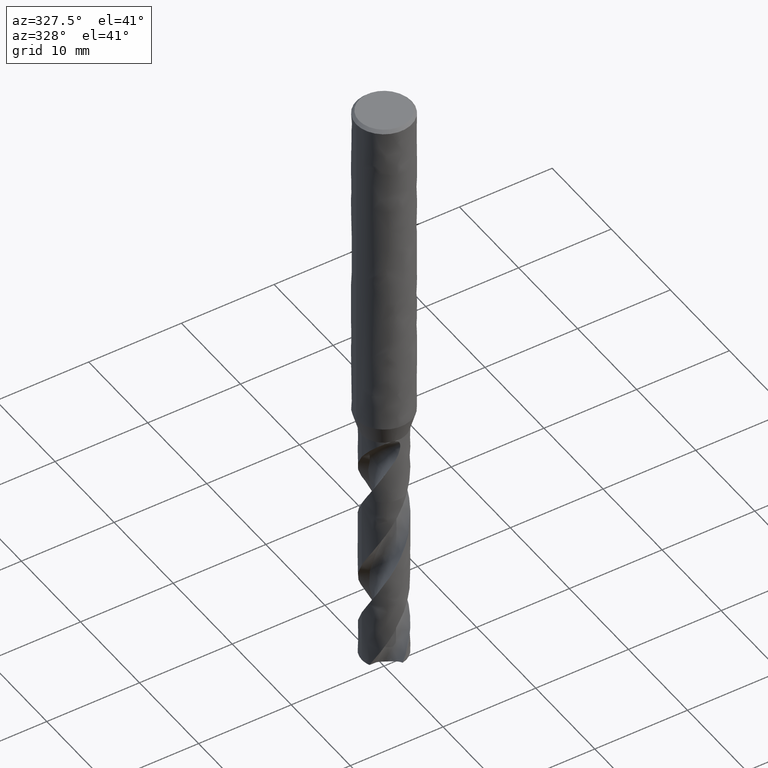
[diagram: clean part render]
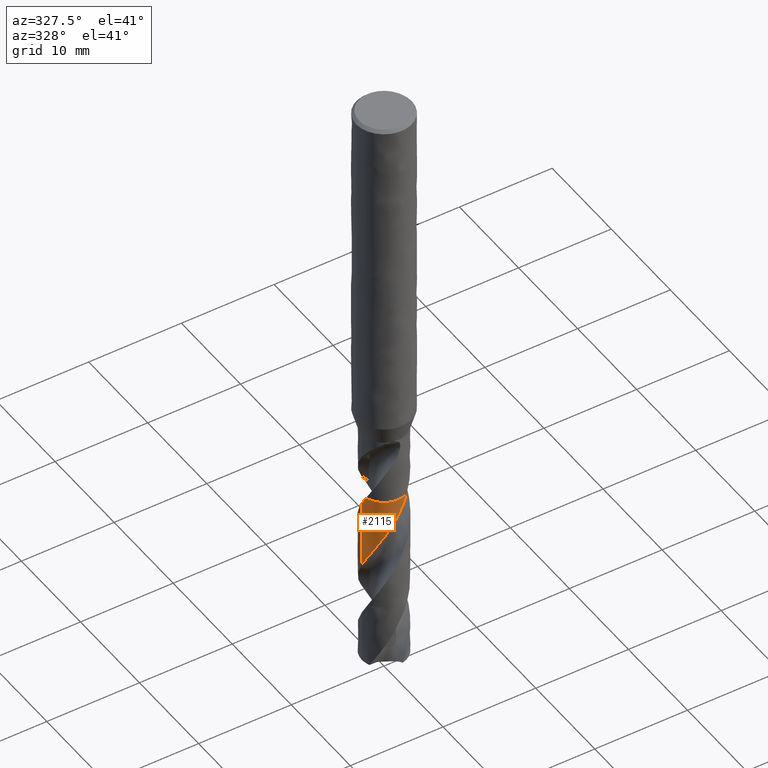
[diagram: same view with one face highlighted and labeled with its STEP entity id]
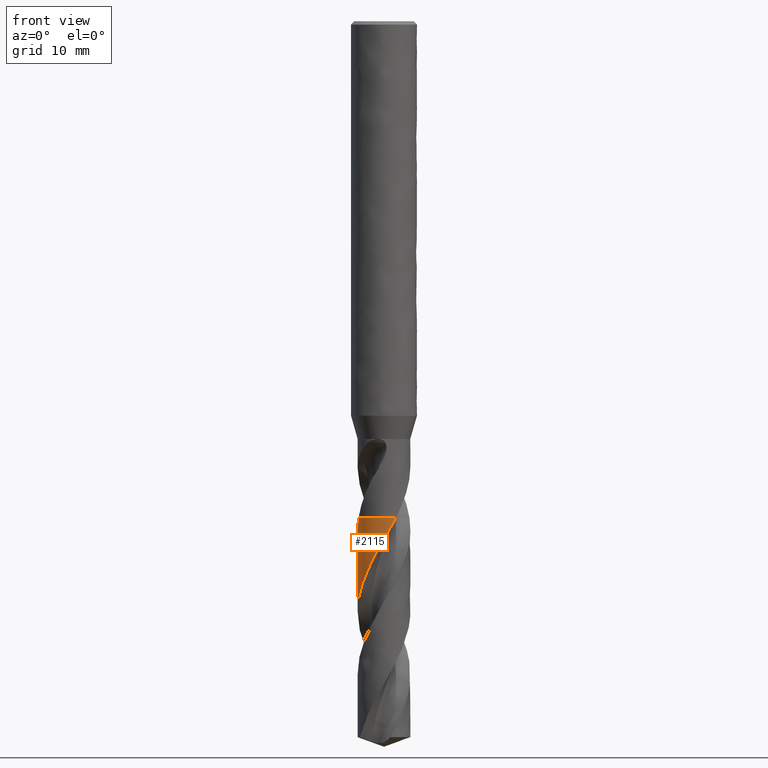
[diagram: same view with one face highlighted and labeled with its STEP entity id]
A machine part, auxiliary view. The second image highlights one B-rep face of the part: STEP entity #2115.
A second angle (front view) of the same face is appended — the face is thin or edge-on in the first view.
In plain terms, the highlighted face is a freeform B-spline surface patch.
Its self-contained STEP definition (entity closure, byte-faithful):
#1694 = EDGE_CURVE('', #1695, #1697, #1699, .T.);
#1695 = VERTEX_POINT('', #1696);
#1696 = CARTESIAN_POINT('', (1.05004083517096, -2.15810431732886, -45.2));
#1697 = VERTEX_POINT('', #1698);
#1698 = CARTESIAN_POINT('', (-2.32390896804312, -0.599539079834466, -45.2));
#1699 = CIRCLE('', #1700, 2.4);
#1700 = AXIS2_PLACEMENT_3D('', #1701, #1702, #1703);
#1701 = CARTESIAN_POINT('', (1.6947285544079E-31, 2.76770176607302E-15, -45.2));
#1702 = DIRECTION('', (3.74939945665464E-33, 6.12323399573677E-17, -1.));
#1703 = DIRECTION('', (-1., 6.12323399573677E-17, 0.));
#1755 = EDGE_CURVE('', #1695, #1756, #1758, .T.);
#1756 = VERTEX_POINT('', #1757);
#1757 = CARTESIAN_POINT('', (-2.4, 3.43370057689298E-15, -53.6765859884442));
#1758 = B_SPLINE_CURVE_WITH_KNOTS('', 3, (#1759, #1760, #1761, #1762, #1763, #1764, #1765, #1766, #1767, #1768, #1769, #1770, #1771, #1772, #1773, #1774, #1775, #1776, #1777, #1778, #1779, #1780, #1781, #1782, #1783, #1784, #1785, #1786, #1787, #1788, #1789, #1790, #1791, #1792, #1793, #1794, #1795, #1796, #1797, #1798, #1799, #1800, #1801, #1802, #1803, #1804, #1805, #1806, #1807, #1808, #1809, #1810, #1811, #1812, #1813, #1814, #1815, #1816, #1817, #1818, #1819, #1820, #1821, #1822, #1823, #1824, #1825, #1826, #1827, #1828, #1829, #1830, #1831, #1832, #1833, #1834), .UNSPECIFIED., .F., .U., (4, 3, 3, 3, 3, 3, 3, 3, 3, 3, 3, 3, 3, 3, 3, 3, 3, 3, 3, 3, 3, 3, 3, 3, 3, 4), (6.8524637557903, 7.08529733531364, 7.52810913284047, 7.97080244437384, 8.41337547245447, 8.85582609828276, 8.98710582537577, 9.02602174702702, 9.06494668401263, 9.50928878898632, 9.95349326748159, 10.3975653644562, 10.8415094806394, 11.2853292362742, 11.7290277018486, 12.1726073893658, 12.6160702371706, 13.0594176359914, 13.502650445902, 13.9457690040015, 14.3887731263511, 14.8316621772988, 15.2744351111606, 15.7170903627224, 16.1596258110125, 16.6209858195814), .UNSPECIFIED.);
#1759 = CARTESIAN_POINT('', (1.05004083517096, -2.15810431732886, -45.2));
#1760 = CARTESIAN_POINT('', (1.01528808339547, -2.17501351314753, -45.2673039571404));
#1761 = CARTESIAN_POINT('', (0.98012068126644, -2.19108572773686, -45.3346280882206));
#1762 = CARTESIAN_POINT('', (0.944597357300617, -2.20629459333532, -45.4019354516186));
#1763 = CARTESIAN_POINT('', (0.877037742524962, -2.23521939502323, -45.529943166975));
#1764 = CARTESIAN_POINT('', (0.80813566420696, -2.26104324072443, -45.6579874803337));
#1765 = CARTESIAN_POINT('', (0.738214944778243, -2.28364592161439, -45.7859997168709));
#1766 = CARTESIAN_POINT('', (0.668312934484987, -2.30624255456003, -45.9139777003528));
#1767 = CARTESIAN_POINT('', (0.597358693914168, -2.32563063157539, -46.0419918355357));
#1768 = CARTESIAN_POINT('', (0.525690055349426, -2.34171944641256, -46.1699762853841));
#1769 = CARTESIAN_POINT('', (0.454040889749544, -2.35780388978499, -46.2979259607936));
#1770 = CARTESIAN_POINT('', (0.381640158227367, -2.3705993963899, -46.4259125192476));
#1771 = CARTESIAN_POINT('', (0.308829115607433, -2.38004717964859, -46.5538684614748));
#1772 = CARTESIAN_POINT('', (0.236038210309583, -2.38949234993749, -46.6817890149763));
#1773 = CARTESIAN_POINT('', (0.162800020605798, -2.39559643907491, -46.8097459722624));
#1774 = CARTESIAN_POINT('', (0.0894606596980297, -2.39833208508884, -46.9376727072575));
#1775 = CARTESIAN_POINT('', (0.0677001044561358, -2.39914377986599, -46.9756299071747));
#1776 = CARTESIAN_POINT('', (0.0459284701002825, -2.39965929139235, -47.0135882458769));
#1777 = CARTESIAN_POINT('', (0.0241548368769771, -2.39987844355822, -47.0515459922139));
#1778 = CARTESIAN_POINT('', (0.0177003673001096, -2.3999434079568, -47.0627980013034));
#1779 = CARTESIAN_POINT('', (0.0112456652208933, -2.39998233291569, -47.0740500574941));
#1780 = CARTESIAN_POINT('', (0.00479096711243198, -2.39999521804401, -47.08530211565));
#1781 = CARTESIAN_POINT('', (-0.00166522630332761, -2.40000810615733, -47.0965567804784));
#1782 = CARTESIAN_POINT('', (-0.00812144176729348, -2.39999494242596, -47.1078114926414));
#1783 = CARTESIAN_POINT('', (-0.0145774427602609, -2.39995572837554, -47.1190662069142));
#1784 = CARTESIAN_POINT('', (-0.088275007691129, -2.39950808593712, -47.2475428036192));
#1785 = CARTESIAN_POINT('', (-0.161965522614885, -2.39566214145715, -47.3760563609709));
#1786 = CARTESIAN_POINT('', (-0.235298556088061, -2.38843768800943, -47.5045392035429));
#1787 = CARTESIAN_POINT('', (-0.308608876055054, -2.38121547219815, -47.632982251009));
#1788 = CARTESIAN_POINT('', (-0.381599788924693, -2.3706131180701, -47.7614622289592));
#1789 = CARTESIAN_POINT('', (-0.453924695734642, -2.35668249253111, -47.8899115395229));
#1790 = CARTESIAN_POINT('', (-0.526228048324384, -2.34275601858779, -48.0183225697091));
#1791 = CARTESIAN_POINT('', (-0.597903105664996, -2.32549607271961, -48.1467704644553));
#1792 = CARTESIAN_POINT('', (-0.668609881657909, -2.30498607938303, -48.2751877769476));
#1793 = CARTESIAN_POINT('', (-0.739296280083286, -2.28448199699019, -48.4035680797979));
#1794 = CARTESIAN_POINT('', (-0.809051629699298, -2.26071909533104, -48.5319850927394));
#1795 = CARTESIAN_POINT('', (-0.877545117377351, -2.23381166774803, -48.6603716923659));
#1796 = CARTESIAN_POINT('', (-0.946019418208723, -2.20691177765077, -48.7887223274928));
#1797 = CARTESIAN_POINT('', (-1.01326843754033, -2.1768550248338, -48.917109508645));
#1798 = CARTESIAN_POINT('', (-1.07897335223076, -2.14378555484823, -49.045466408886));
#1799 = CARTESIAN_POINT('', (-1.14466031063833, -2.11072512231076, -49.1737882308863));
#1800 = CARTESIAN_POINT('', (-1.20883854229777, -2.07463624500639, -49.3021465396352));
#1801 = CARTESIAN_POINT('', (-1.27120421147993, -2.03569149251936, -49.4304745890519));
#1802 = CARTESIAN_POINT('', (-1.33355318537555, -1.99675716554063, -49.5587682850561));
#1803 = CARTESIAN_POINT('', (-1.3941231668168, -1.954948152414, -49.6870984988265));
#1804 = CARTESIAN_POINT('', (-1.45262804816325, -1.91046375356598, -49.8153984049656));
#1805 = CARTESIAN_POINT('', (-1.51111751921544, -1.86599107199112, -49.9436645166715));
#1806 = CARTESIAN_POINT('', (-1.5675732582517, -1.81882141091316, -50.0719672029113));
#1807 = CARTESIAN_POINT('', (-1.6217292586852, -1.76917896537471, -50.2002395236223));
#1808 = CARTESIAN_POINT('', (-1.67587116040613, -1.71954944351167, -50.3284784505345));
#1809 = CARTESIAN_POINT('', (-1.72774229040347, -1.66742298695513, -50.4567539828224));
#1810 = CARTESIAN_POINT('', (-1.77709880251325, -1.61304675880954, -50.5849991303444));
#1811 = CARTESIAN_POINT('', (-1.82644255778956, -1.55868458490842, -50.7132111312374));
#1812 = CARTESIAN_POINT('', (-1.87329818574615, -1.50204605753525, -50.8414597029084));
#1813 = CARTESIAN_POINT('', (-1.917445801217, -1.44339932083789, -50.9696779451051));
#1814 = CARTESIAN_POINT('', (-1.96158203678791, -1.3847677014688, -51.0978631365753));
#1815 = CARTESIAN_POINT('', (-2.00303425469584, -1.32409887914848, -51.2260847715278));
#1816 = CARTESIAN_POINT('', (-2.04160812307655, -1.26167994031286, -51.3542762304681));
#1817 = CARTESIAN_POINT('', (-2.08017202972247, -1.19927712122202, -51.4824345838536));
#1818 = CARTESIAN_POINT('', (-2.11587902950629, -1.13509277808864, -51.6106291873727));
#1819 = CARTESIAN_POINT('', (-2.14856186316194, -1.06943065234081, -51.7387937998648));
#1820 = CARTESIAN_POINT('', (-2.18123620737178, -1.00378558249039, -51.8669251212861));
#1821 = CARTESIAN_POINT('', (-2.21090502344107, -0.936629208548124, -51.9950925712449));
#1822 = CARTESIAN_POINT('', (-2.23742965280758, -0.868279073073476, -52.1232301009228));
#1823 = CARTESIAN_POINT('', (-2.26394732792075, -0.799946857704407, -52.2513340353774));
#1824 = CARTESIAN_POINT('', (-2.28733629402725, -0.730385907074784, -52.3794741113121));
#1825 = CARTESIAN_POINT('', (-2.30748774537087, -0.659924469135114, -52.5075842262352));
#1826 = CARTESIAN_POINT('', (-2.32763384076574, -0.589481758772137, -52.6356602914416));
#1827 = CARTESIAN_POINT('', (-2.34455454911165, -0.518102717211441, -52.7637725690591));
#1828 = CARTESIAN_POINT('', (-2.35817174298387, -0.446123335628662, -52.8918548072488));
#1829 = CARTESIAN_POINT('', (-2.37178525140478, -0.374163435042394, -53.0199023803779));
#1830 = CARTESIAN_POINT('', (-2.38210398738233, -0.301566849850296, -53.1479862287935));
#1831 = CARTESIAN_POINT('', (-2.389080988185, -0.228674510807598, -53.2760399841341));
#1832 = CARTESIAN_POINT('', (-2.39635477644884, -0.152681479525487, -53.4095408864674));
#1833 = CARTESIAN_POINT('', (-2.4, -0.0763285560071012, -53.5430783434914));
#1834 = CARTESIAN_POINT('', (-2.4, 3.32869559648775E-15, -53.6765859884442));
#2115 = ADVANCED_FACE('', (#2116), #2144, .T.);
#2116 = FACE_OUTER_BOUND('', #2117, .T.);
#2117 = EDGE_LOOP('', (#2118, #2119, #2137, #2143));
#2118 = ORIENTED_EDGE('', *, *, #1694, .T.);
#2119 = ORIENTED_EDGE('', *, *, #2120, .T.);
#2120 = EDGE_CURVE('', #1697, #2121, #2123, .T.);
#2121 = VERTEX_POINT('', #2122);
#2122 = CARTESIAN_POINT('', (-2.4, 2.97905925148196E-15, -46.2517296833029));
#2123 = B_SPLINE_CURVE_WITH_KNOTS('', 3, (#2124, #2125, #2126, #2127, #2128, #2129, #2130, #2131, #2132, #2133, #2134, #2135, #2136), .UNSPECIFIED., .F., .U., (4, 3, 3, 3, 4), (2.89293345949753, 3.13424402128989, 3.57678693145644, 4.01920450059823, 4.10663657970696), .UNSPECIFIED.);
#2124 = CARTESIAN_POINT('', (-2.32390896804312, -0.599539079834466, -45.2));
#2125 = CARTESIAN_POINT('', (-2.3339432006126, -0.560644796142267, -45.269689571265));
#2126 = CARTESIAN_POINT('', (-2.34300202586689, -0.521492424212084, -45.339401103801));
#2127 = CARTESIAN_POINT('', (-2.35107005941288, -0.48215098852097, -45.409095047173));
#2128 = CARTESIAN_POINT('', (-2.3658661421796, -0.410002163738667, -45.5369077723673));
#2129 = CARTESIAN_POINT('', (-2.37734039437732, -0.337158252583063, -45.6647575522925));
#2130 = CARTESIAN_POINT('', (-2.38543982237923, -0.263963735778569, -45.7925755153497));
#2131 = CARTESIAN_POINT('', (-2.39353695638753, -0.190789949790303, -45.9203572766419));
#2132 = CARTESIAN_POINT('', (-2.39826500298782, -0.117229956991554, -46.0481761679727));
#2133 = CARTESIAN_POINT('', (-2.39960328280433, -0.0436358242121423, -46.1759660646058));
#2134 = CARTESIAN_POINT('', (-2.39986775825682, -0.0290918989978029, -46.2012203427607));
#2135 = CARTESIAN_POINT('', (-2.4, -0.0145457240333781, -46.2264750562936));
#2136 = CARTESIAN_POINT('', (-2.4, 2.99695705503373E-15, -46.2517296833029));
#2137 = ORIENTED_EDGE('', *, *, #2138, .T.);
#2138 = EDGE_CURVE('', #2121, #1756, #2139, .T.);
#2139 = LINE('', #2140, #2141);
#2140 = CARTESIAN_POINT('', (-2.4, 2.97905925148196E-15, -46.2517296833029));
#2141 = VECTOR('', #2142, 7.42485630514135);
#2142 = DIRECTION('', (0., 4.54641325411019E-16, -7.42485630514135));
#2143 = ORIENTED_EDGE('', *, *, #1755, .F.);
#2144 = (
   BOUNDED_SURFACE ()
   B_SPLINE_SURFACE (2, 1, ((#2145, #2146), (#2147, #2148), (#2149, #2150), (#2151, #2152), (#2153, #2154)), .UNSPECIFIED., .F., .F., .U.)
   B_SPLINE_SURFACE_WITH_KNOTS ((3, 2, 3), (2, 2), (10.1885240137361, 11.3097335529233, 15.079644737231), (0.265423389714348, 0.577907304472405), .UNSPECIFIED.)
   GEOMETRIC_REPRESENTATION_ITEM ()
   RATIONAL_B_SPLINE_SURFACE (((0.877595636378884, 0.877595636378884), (0.91289060806954, 0.91289060806954), (1., 1.), (0.707106781186548, 0.707106781186548), (1., 1.)))
   REPRESENTATION_ITEM ('')
   SURFACE ()
);
#2145 = CARTESIAN_POINT('', (1.05004083517096, -2.15810431732886, -45.2));
#2146 = CARTESIAN_POINT('', (1.05004083517096, -2.15810431732886, -53.6765859884442));
#2147 = CARTESIAN_POINT('', (0.552882915564149, -2.4, -45.2));
#2148 = CARTESIAN_POINT('', (0.552882915564149, -2.4, -53.6765859884442));
#2149 = CARTESIAN_POINT('', (2.93915231795365E-16, -2.4, -45.2));
#2150 = CARTESIAN_POINT('', (2.93915231795365E-16, -2.4, -53.6765859884442));
#2151 = CARTESIAN_POINT('', (-2.4, -2.4, -45.2));
#2152 = CARTESIAN_POINT('', (-2.4, -2.4, -53.6765859884442));
#2153 = CARTESIAN_POINT('', (-2.4, 2.9146593819707E-15, -45.2));
#2154 = CARTESIAN_POINT('', (-2.4, 3.43370057689298E-15, -53.6765859884442));